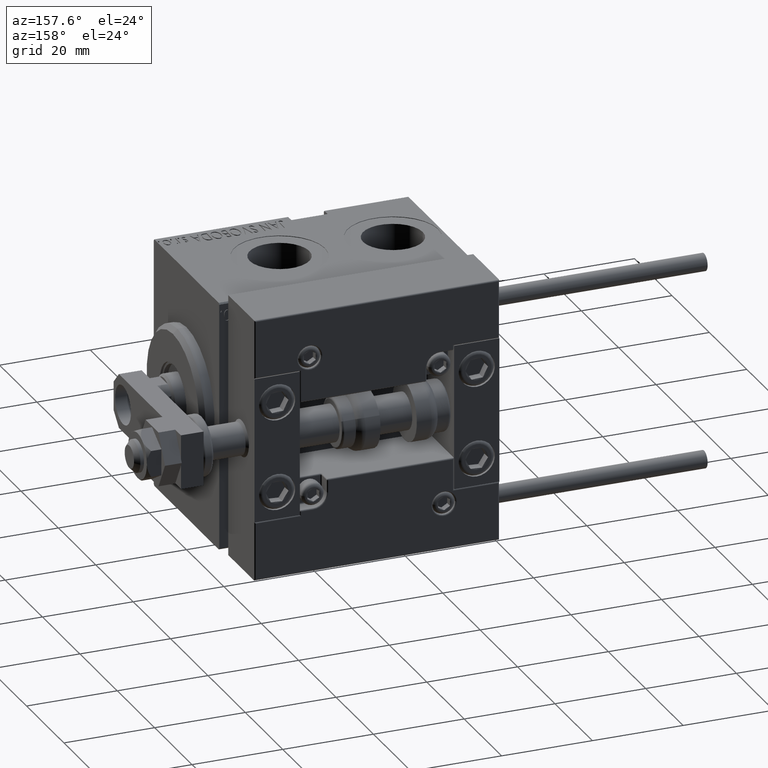
[diagram: clean part render]
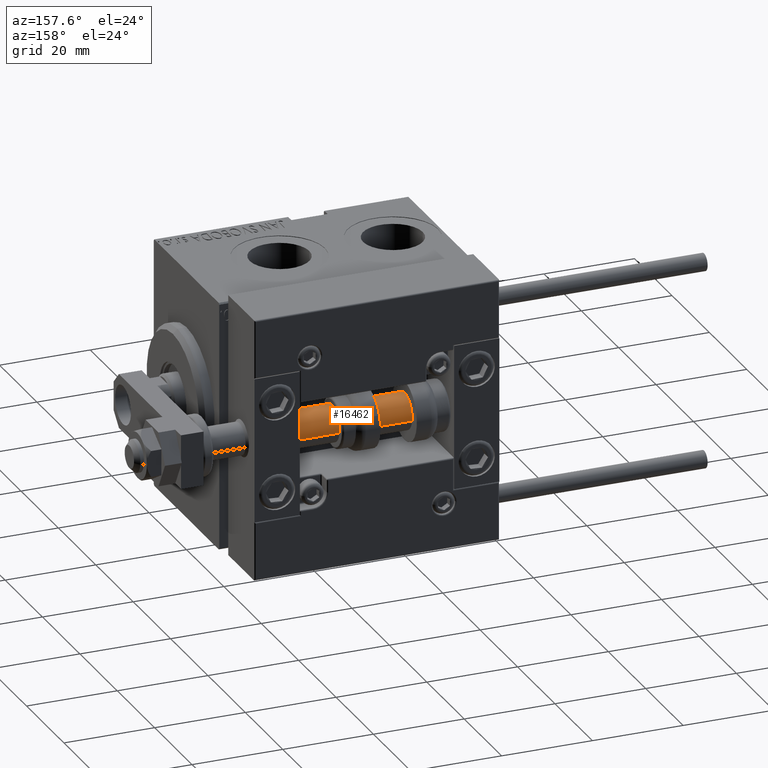
[diagram: same view with one face highlighted and labeled with its STEP entity id]
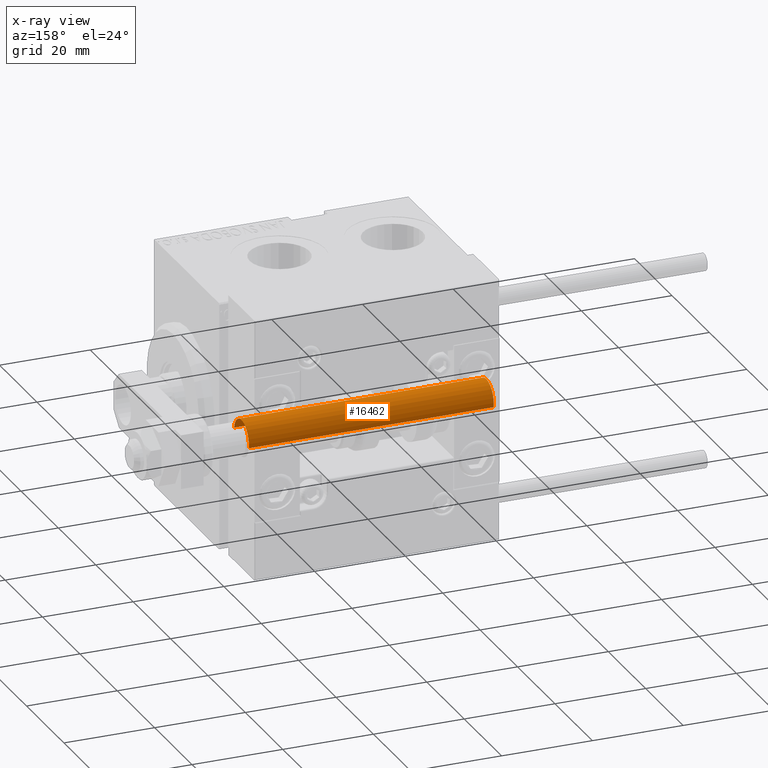
[diagram: x-ray of the same camera — body ghosted, the highlighted face saturated]
A machine part, auxiliary view. The second image highlights one B-rep face of the part: STEP entity #16462.
The next image is the same camera in x-ray: the body ghosted, the highlighted face saturated — about 0% of this face is hidden behind the body in this view.
In plain terms, the highlighted cylindrical surface (edge-blend (fillet) strip) has radius 4 mm, axis along (1, 0, -0).
Its self-contained STEP definition (entity closure, byte-faithful):
#441 = CIRCLE ( 'NONE', #45030, 4.000000000000000000 ) ;
#4264 = ORIENTED_EDGE ( 'NONE', *, *, #9454, .T. ) ;
#6434 = DIRECTION ( 'NONE',  ( 1.000000000000000000, 0.000000000000000000, 0.000000000000000000 ) ) ;
#8401 = CARTESIAN_POINT ( 'NONE',  ( 4.000000000000000000, 4.898587196589412829E-16, 56.00000000000000000 ) ) ;
#8531 = CARTESIAN_POINT ( 'NONE',  ( -4.000000000000000000, 0.000000000000000000, 56.00000000000000000 ) ) ;
#9454 = EDGE_CURVE ( 'NONE', #39850, #23449, #29572, .T. ) ;
#15299 = DIRECTION ( 'NONE',  ( -1.000000000000000000, 0.000000000000000000, 0.000000000000000000 ) ) ;
#16238 = VERTEX_POINT ( 'NONE', #8401 ) ;
#16462 = ADVANCED_FACE ( 'NONE', ( #22278 ), #19438, .T. ) ;
#16503 = ORIENTED_EDGE ( 'NONE', *, *, #26037, .T. ) ;
#17532 = VECTOR ( 'NONE', #32231, 1000.000000000000000 ) ;
#18916 = CARTESIAN_POINT ( 'NONE',  ( 0.000000000000000000, 0.000000000000000000, 56.00000000000000000 ) ) ;
#19399 = CARTESIAN_POINT ( 'NONE',  ( -4.000000000000000000, 0.000000000000000000, 2.000000000000036415 ) ) ;
#19438 = CYLINDRICAL_SURFACE ( 'NONE', #50346, 4.000000000000000000 ) ;
#21317 = LINE ( 'NONE', #47729, #17532 ) ;
#22095 = CARTESIAN_POINT ( 'NONE',  ( 0.000000000000000000, 0.000000000000000000, 56.00000000000000000 ) ) ;
#22278 = FACE_OUTER_BOUND ( 'NONE', #27650, .T. ) ;
#23449 = VERTEX_POINT ( 'NONE', #19399 ) ;
#24870 = VERTEX_POINT ( 'NONE', #47088 ) ;
#25590 = EDGE_CURVE ( 'NONE', #16238, #24870, #21317, .T. ) ;
#26037 = EDGE_CURVE ( 'NONE', #23449, #24870, #30755, .T. ) ;
#27650 = EDGE_LOOP ( 'NONE', ( #45859, #30953, #4264, #16503 ) ) ;
#29572 = LINE ( 'NONE', #45337, #49786 ) ;
#29904 = AXIS2_PLACEMENT_3D ( 'NONE', #49614, #29983, #6434 ) ;
#29983 = DIRECTION ( 'NONE',  ( -0.000000000000000000, -0.000000000000000000, 1.000000000000000000 ) ) ;
#30755 = CIRCLE ( 'NONE', #29904, 4.000000000000000000 ) ;
#30953 = ORIENTED_EDGE ( 'NONE', *, *, #36984, .F. ) ;
#32231 = DIRECTION ( 'NONE',  ( -0.000000000000000000, -0.000000000000000000, -1.000000000000000000 ) ) ;
#33754 = DIRECTION ( 'NONE',  ( 0.000000000000000000, 0.000000000000000000, 1.000000000000000000 ) ) ;
#34444 = DIRECTION ( 'NONE',  ( -0.000000000000000000, -0.000000000000000000, -1.000000000000000000 ) ) ;
#36984 = EDGE_CURVE ( 'NONE', #39850, #16238, #441, .T. ) ;
#39850 = VERTEX_POINT ( 'NONE', #8531 ) ;
#41471 = DIRECTION ( 'NONE',  ( -0.000000000000000000, -0.000000000000000000, -1.000000000000000000 ) ) ;
#45030 = AXIS2_PLACEMENT_3D ( 'NONE', #22095, #33754, #49512 ) ;
#45337 = CARTESIAN_POINT ( 'NONE',  ( -4.000000000000000000, 0.000000000000000000, 56.00000000000000000 ) ) ;
#45859 = ORIENTED_EDGE ( 'NONE', *, *, #25590, .F. ) ;
#47088 = CARTESIAN_POINT ( 'NONE',  ( 4.000000000000000000, 4.898587196589412829E-16, 2.000000000000036415 ) ) ;
#47729 = CARTESIAN_POINT ( 'NONE',  ( 4.000000000000000000, 4.898587196589412829E-16, 56.00000000000000000 ) ) ;
#49512 = DIRECTION ( 'NONE',  ( 1.000000000000000000, 0.000000000000000000, 0.000000000000000000 ) ) ;
#49614 = CARTESIAN_POINT ( 'NONE',  ( 0.000000000000000000, 0.000000000000000000, 2.000000000000036415 ) ) ;
#49786 = VECTOR ( 'NONE', #41471, 1000.000000000000000 ) ;
#50346 = AXIS2_PLACEMENT_3D ( 'NONE', #18916, #34444, #15299 ) ;